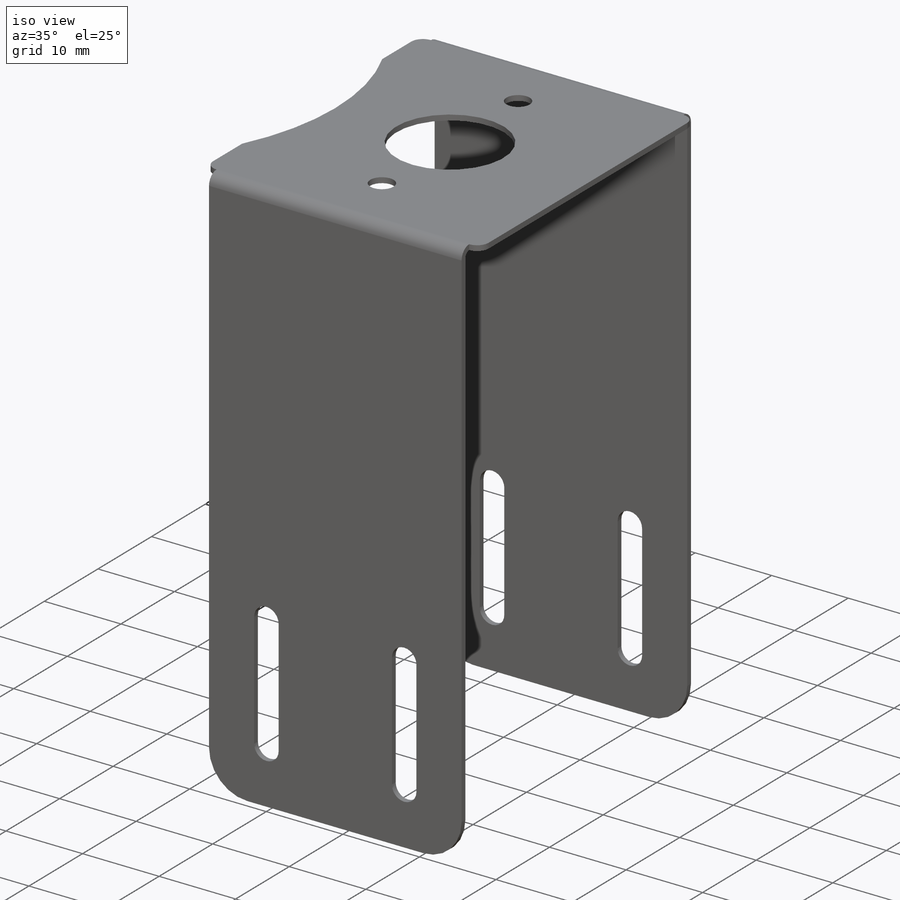
[diagram: iso view]
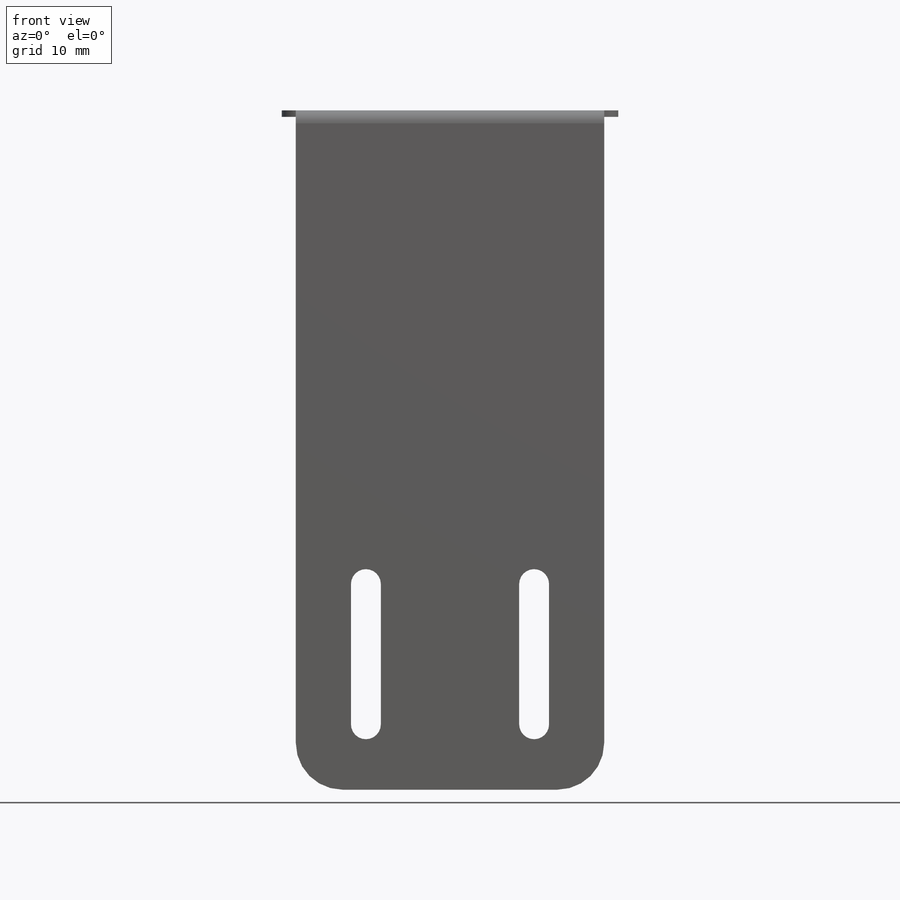
[diagram: front view]
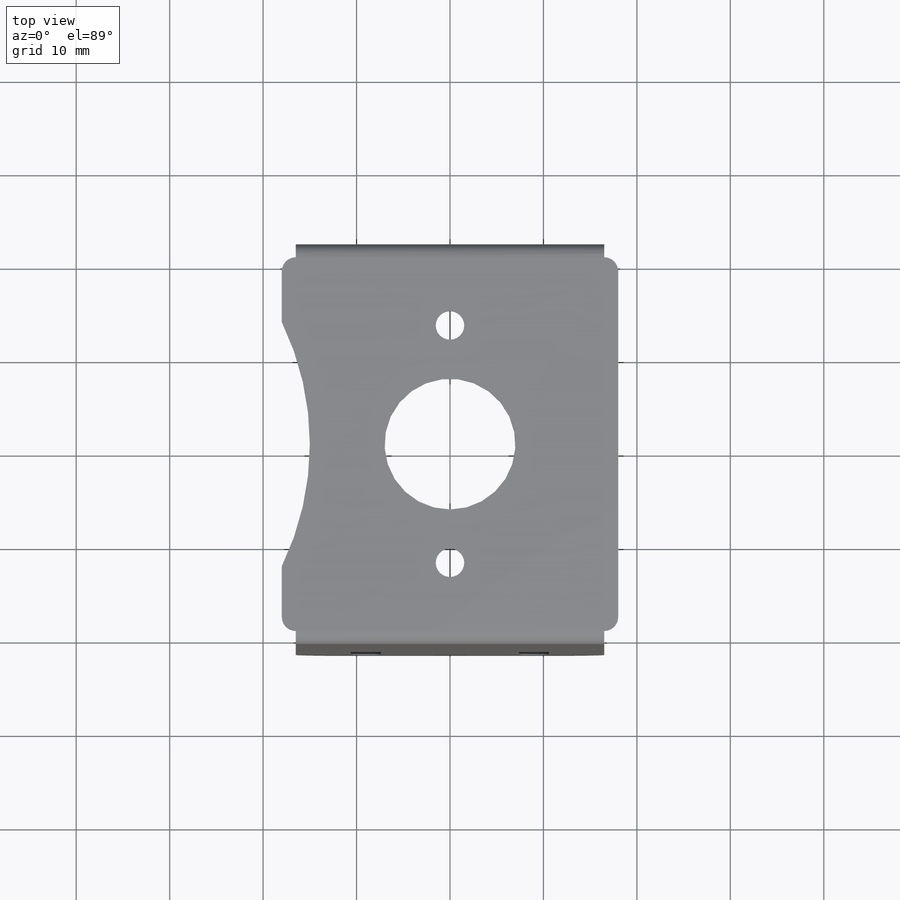
[diagram: top view]
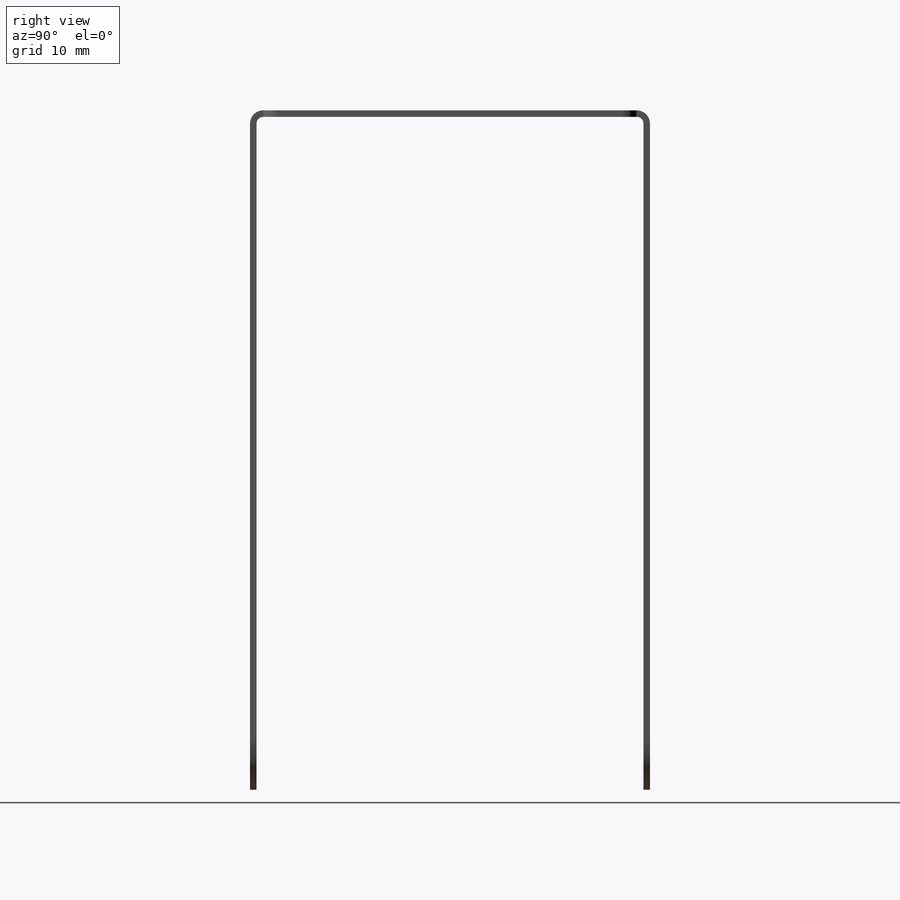
[diagram: right view]
SOLIDWORKS PART (.sldprt)
format: sldprt  version: not decoded by parser v0  size: 336,384 bytes
history: native  units: mm
features: sketch x8, sheet_metal_op x3, cut_extrude x3, material x1 + 2 further entries (+11 scaffold rows collapsed; 1 parser-record rows omitted)
feature tree (29):
  scaffold x11  (default folders/planes/origin — collapsed)
  material  "6061 Alloy"
  sketch  "Sketch1"  dims[D1=36.0mm D2=40.0mm]
  sheet_metal_op  "Sheet-Metal1"
  sheet_metal_op  "Base-Flange1"
  sketch  "Sketch8"  dims[D1=33.0mm D2=14.0mm]
  sketch  "Sketch9"  dims[D1=0.7mm D4=90.0deg D5=1.0 D8=0.35mm D9=0.35mm]
  sheet_metal_op  "EdgeBend2"
  sketch  "Sketch10"  dims[D1=3.2mm D2=15.0mm D3=18.0mm D4=7.0mm]
  cut_extrude  "Cut-Extrude1"  [1 undecoded]
  sketch  "Sketch11"  dims[c1.D1=3.05mm c1.D2=9.0mm c2.D1=3.05mm c2.D2=14.0mm]
  cut_extrude  "Cut-Extrude2"  [1 undecoded]
  sketch  "Sketch12"  dims[D2=60.0mm D1=45.0mm]
  cut_extrude  "Cut-Extrude3"  [1 undecoded]
  "Flat-Pattern1"
  sketch  "Bend-Lines1"
  sketch  "Bounding-Box1"
  "Flatten-<EdgeBend2>1"
  parser-record x1  (decoder bookkeeping rows leaked as tree rows — omitted from the tree; the rows remain in map.json)
decode coverage: 6 of 14 modeling features carry decoded parameters; 2 rows unclassified (native names shown)
note: 3 parameter values undecoded
summary: no parameter record found for 3 features
note: suppression state not decoded; provenance and decode notes live in map.json
